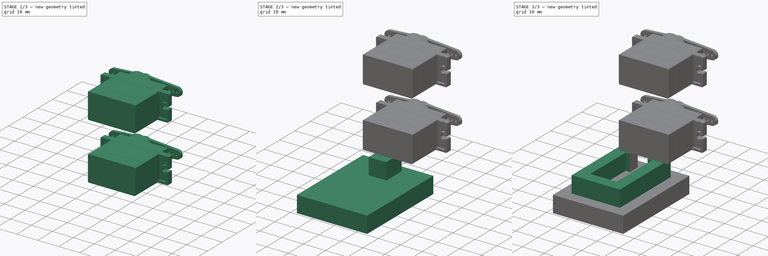
[diagram: build sequence overview — one tinted view per stage of 3, left to right]
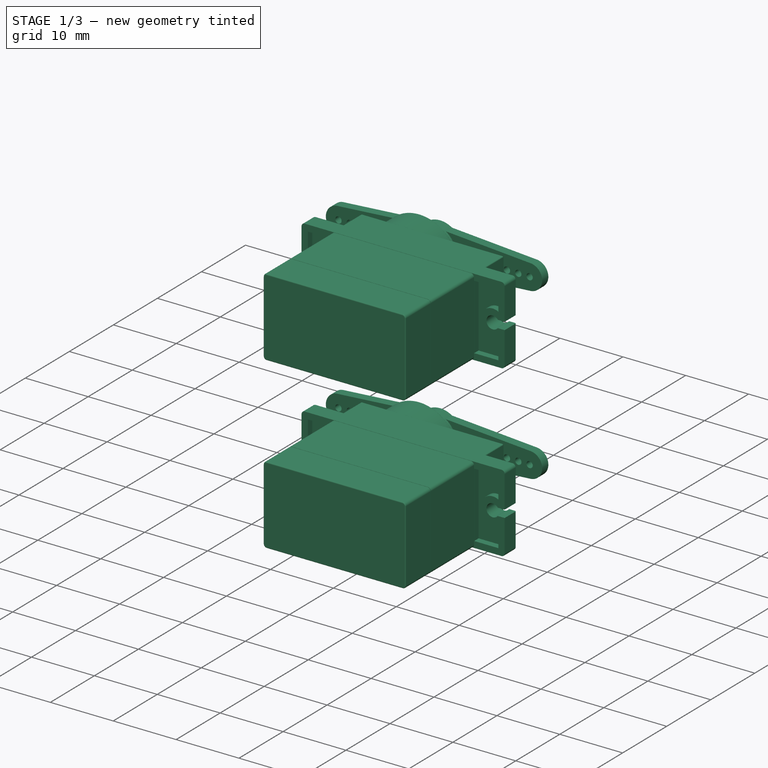
[diagram: stage 1 of 3 — iso view after this stage's code; geometry added in this stage tinted green]
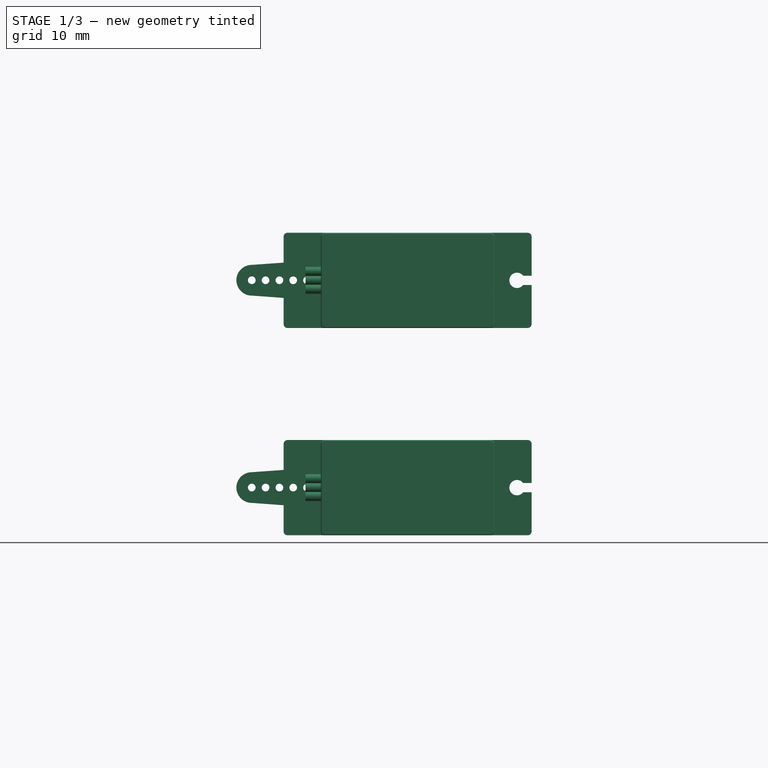
[diagram: stage 1 of 3 — front view after this stage's code; geometry added in this stage tinted green]
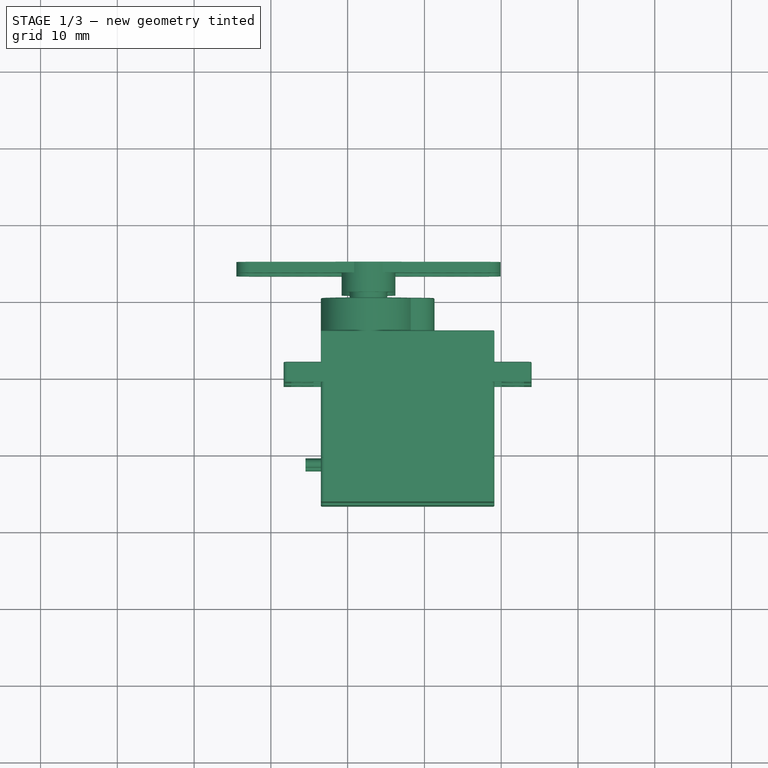
[diagram: stage 1 of 3 — top view after this stage's code; geometry added in this stage tinted green]
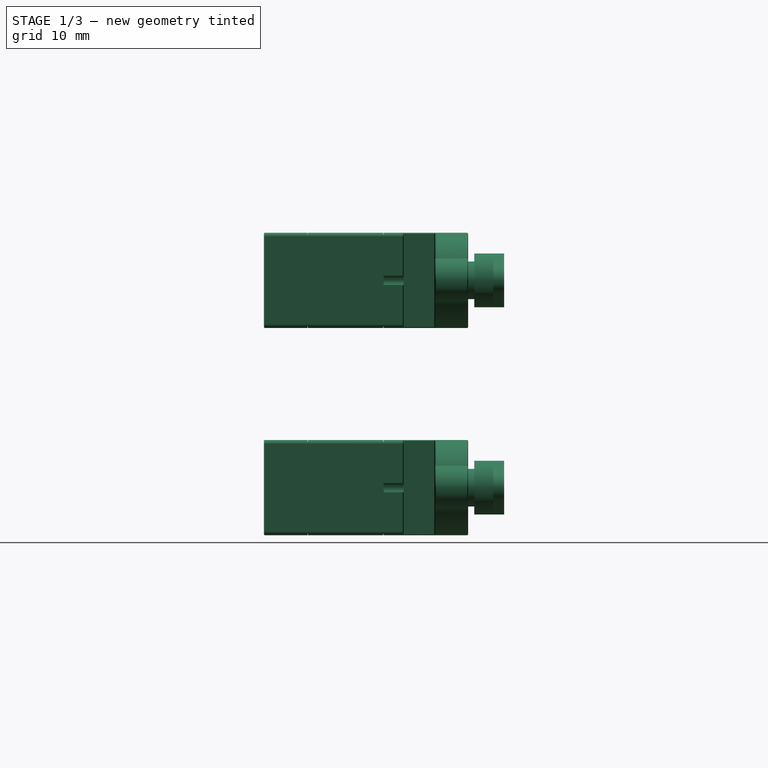
[diagram: stage 1 of 3 — right view after this stage's code; geometry added in this stage tinted green]
FCSTD DOCUMENT  (FreeCAD 0.18R16117 (Git))
Label: full
License: All rights reserved
LicenseURL: http://en.wikipedia.org/wiki/All_rights_reserved
objects: Part::Feature×5, PartDesign::Body×3, Part::Fuse×3, App::Part×3, Sketcher::SketchObject×2, PartDesign::Pad×2, Part::Box×1, Part::Cut×1, PartDesign::FeatureBase×1
note: 20 computed .brp shape members not serialized (recipe doc carries the construction recipe); baked Part::Feature solids carry a one-line shape summary decoded from their .brp

FEATURE [Part::Feature] Part__Feature  label="microservoSG90"
  Placement = pos=(7.80939,3.36548,26.0766) rot=(0,0,1;0rad)
  shape: bbox 32.38 x 29.8 x 13.42 mm, 178 faces (baked)
FEATURE [Part::Feature] Part__Feature001  label="microservoArm_A2"
  Placement = pos=(2.70939,34.6655,26.0766) rot=(0.000375,0,1;3.14159rad)
  shape: bbox 34.4 x 3.9 x 7 mm, 48 faces (baked)
FEATURE [App::Part] microservoAssembly
  Origin = -> Origin002
  Placement = pos=(0,8,0) rot=(0.707107,0,0.707107;1.5708rad)
FEATURE [Part::Fuse] Fusion001
  Base = -> Part__Feature
  Placement = pos=(0,0,0) rot=(1,0,0;1.5708rad)
  Tool = -> Part__Feature001
FEATURE [PartDesign::FeatureBase] BaseFeature
  BaseFeature = -> Fusion001
FEATURE [PartDesign::Body] Body002
  BaseFeature = -> Fusion001
  Group = -> [BaseFeature]
  Origin = -> Origin003
  Placement = pos=(0,0,0) rot=(1,0,0;1.5708rad)
  Tip = -> BaseFeature
FEATURE [App::Part] Part
  Group = -> [Fusion001,Part__Feature,Part__Feature001,Body002]
  Origin = -> Origin004
  Placement = pos=(27,8,0) rot=(0,0,1;-1.5708rad)
FEATURE [Part::Feature] Part__Feature002  label="Fusion002"
  Placement = pos=(1,5,40.8) rot=(0,0,1;-1.5708rad)
  shape: bbox 52 x 34.4 x 9 mm, 81 faces (baked)
FEATURE [Part::Feature] Part__Feature003  label="microservoSG091"
  Placement = pos=(7.80939,3.36548,26.0766) rot=(0,0,1;0rad)
  shape: bbox 32.38 x 29.8 x 13.42 mm, 178 faces (baked)
FEATURE [Part::Feature] Part__Feature004  label="microservoArm_A003"
  Placement = pos=(2.70939,34.6655,26.08) rot=(0.000375,0,1;3.14159rad)
  shape: bbox 34.4 x 3.9 x 7 mm, 48 faces (baked)
FEATURE [Part::Fuse] Fusion002  label="Fusion003"
  Base = -> Part__Feature003
  Placement = pos=(0,0,27) rot=(1,0,0;0rad)
  Tool = -> Part__Feature004
FEATURE [App::Part] Part001
  Group = -> [Fusion002,Part__Feature003,Part__Feature004]
  Origin = -> Origin005
  Placement = pos=(-6,-8,-5) rot=(0,0,1;0rad)
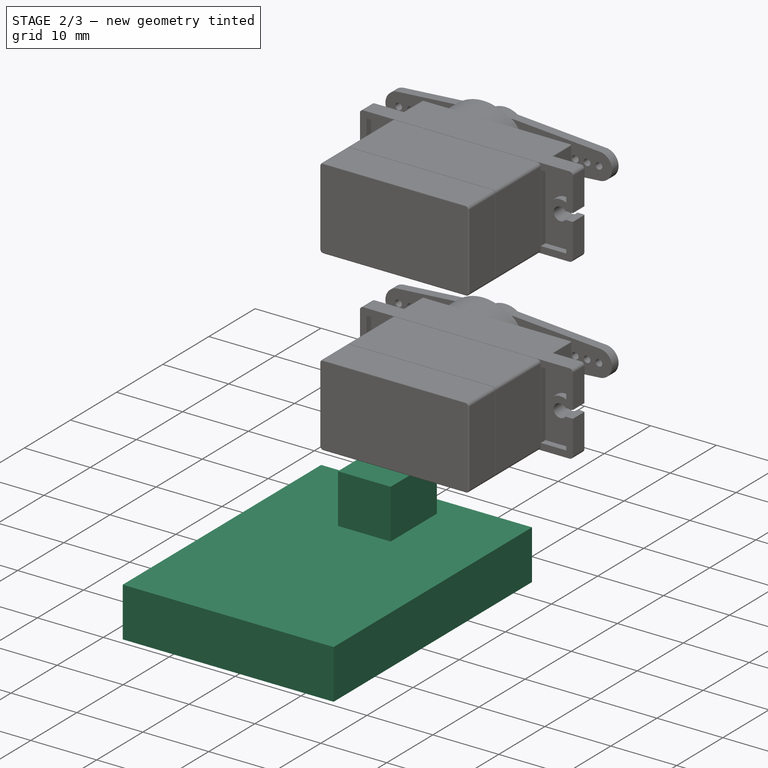
[diagram: stage 2 of 3 — iso view after this stage's code; geometry added in this stage tinted green]
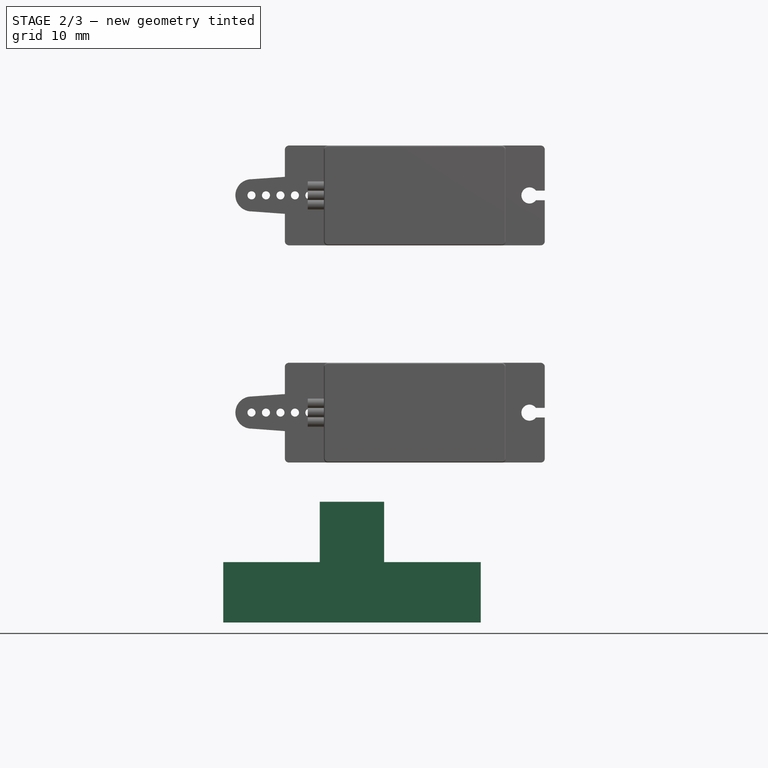
[diagram: stage 2 of 3 — front view after this stage's code; geometry added in this stage tinted green]
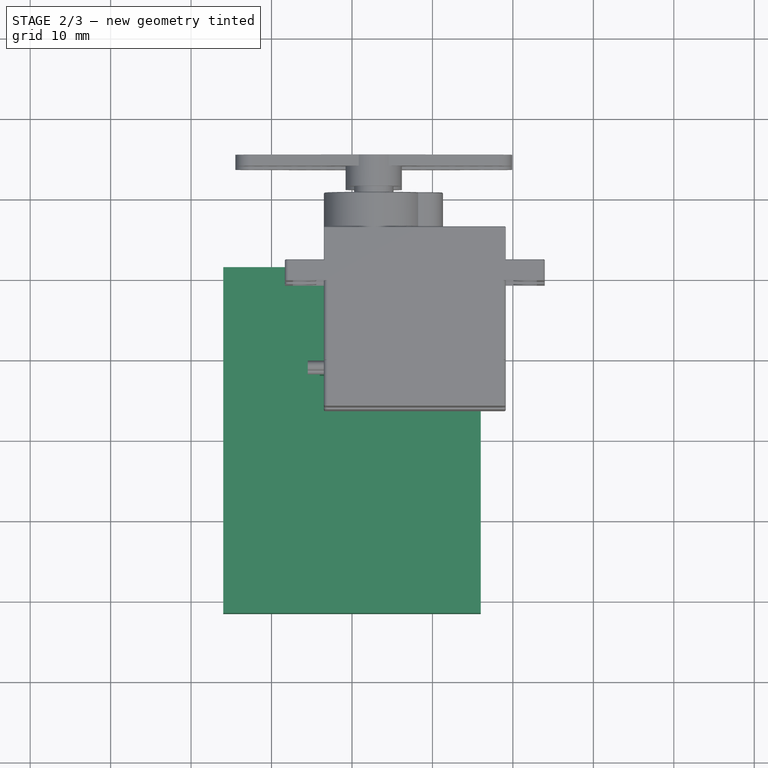
[diagram: stage 2 of 3 — top view after this stage's code; geometry added in this stage tinted green]
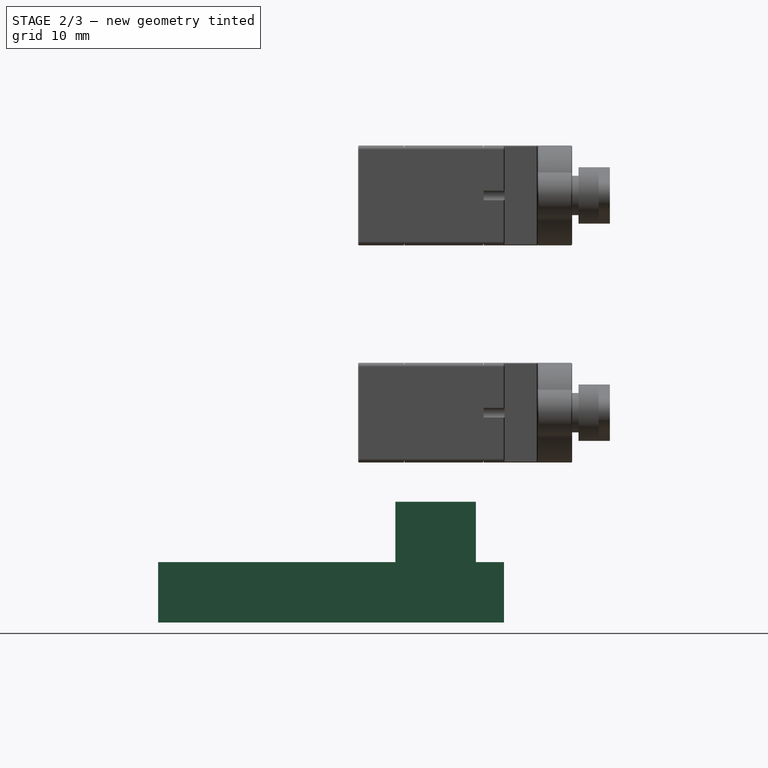
[diagram: stage 2 of 3 — right view after this stage's code; geometry added in this stage tinted green]
FEATURE [PartDesign::Body] Body
  Group = -> [Sketch,Pad]
  Origin = -> Origin
  Tip = -> Pad
FEATURE [Sketcher::SketchObject] Sketch001
  MapMode = 5
  Support = -> [XY_Plane001]
  sketch-geometry (4):
    g0: LineSegment StartX=-16 StartY=21.5 StartZ=0 EndX=16 EndY=21.5 EndZ=0
    g1: LineSegment StartX=16 StartY=21.5 StartZ=0 EndX=16 EndY=-21.5 EndZ=0
    g2: LineSegment StartX=16 StartY=-21.5 StartZ=0 EndX=-16 EndY=-21.5 EndZ=0
    g3: LineSegment StartX=-16 StartY=-21.5 StartZ=0 EndX=-16 EndY=21.5 EndZ=0
  constraints (8):
    c: Coincident(g0,g1)
    c: Coincident(g1,g2)
    c: Coincident(g2,g3)
    c: Coincident(g3,g0)
    c: Horizontal(g2)
    c: Vertical(g1)
    c: Symmetric(g0,g0,g-2)
    c: Symmetric(g0,g2,g-1)
FEATURE [PartDesign::Pad] Pad001
  Length = 7.5
  Length2 = 100
  Profile = -> Sketch001
  Type = 0
FEATURE [Part::Box] Box  label="Cube"
  AttacherType = Attacher::AttachEngine3D
  Height = 7.5
  Length = 8
  Placement = pos=(-4,8,7.5) rot=(0,0,1;0rad)
  Width = 10
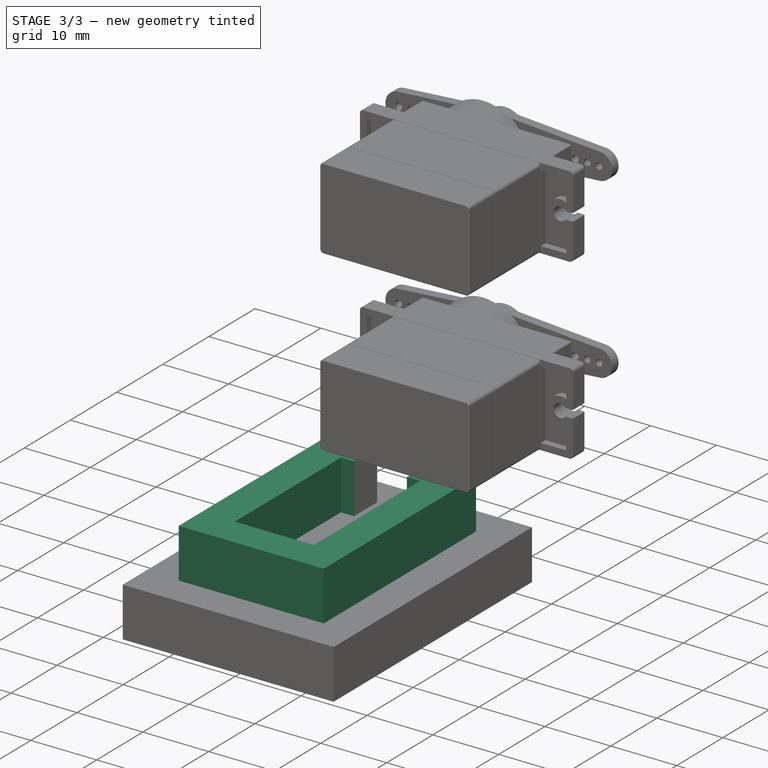
[diagram: stage 3 of 3 — iso view after this stage's code; geometry added in this stage tinted green]
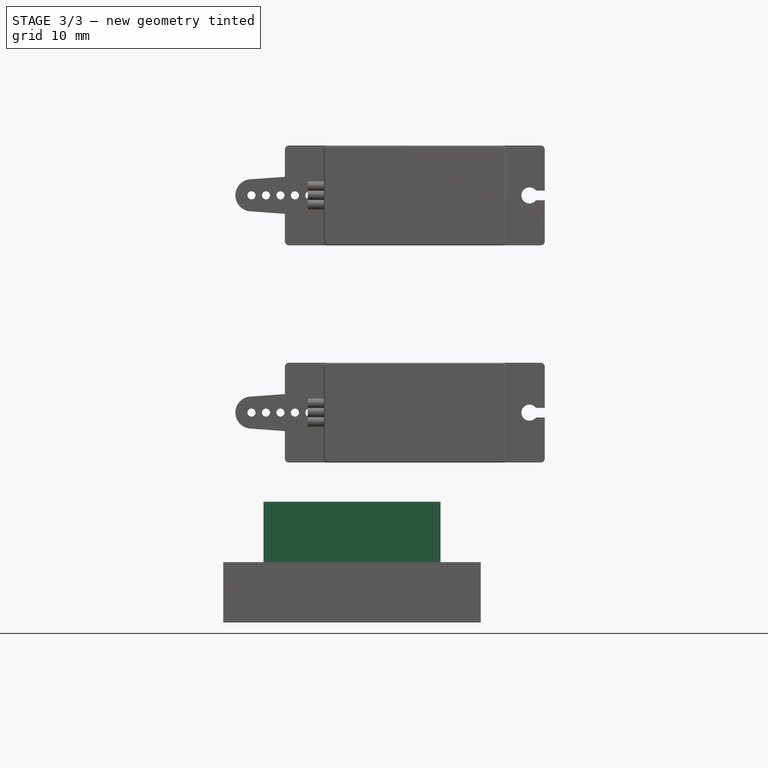
[diagram: stage 3 of 3 — front view after this stage's code; geometry added in this stage tinted green]
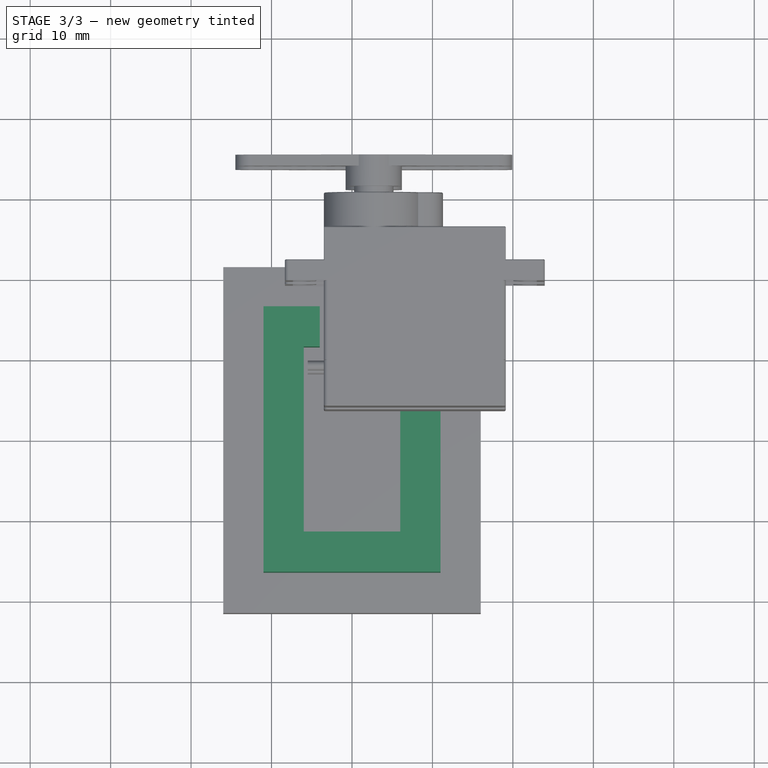
[diagram: stage 3 of 3 — top view after this stage's code; geometry added in this stage tinted green]
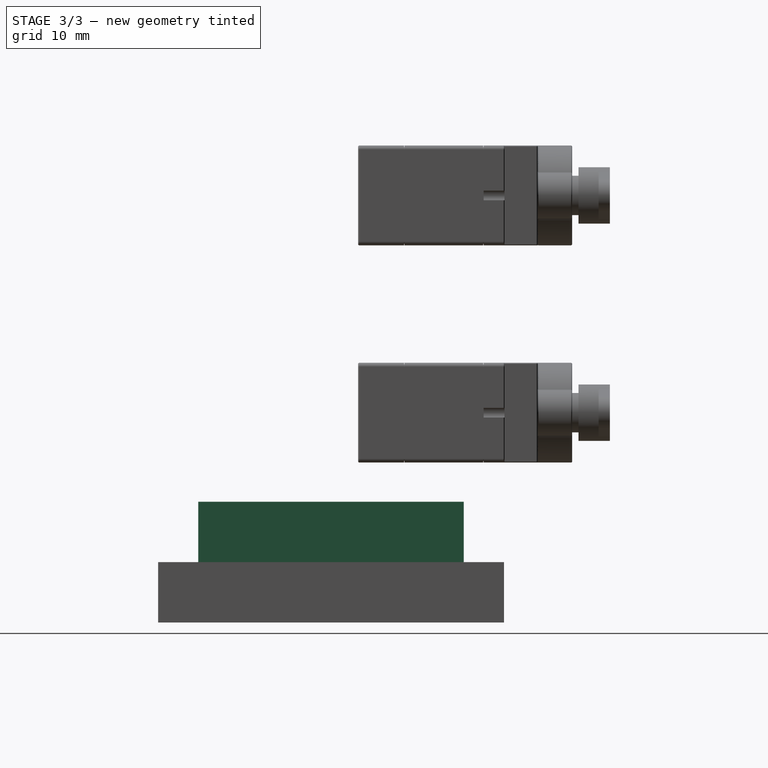
[diagram: stage 3 of 3 — right view after this stage's code; geometry added in this stage tinted green]
FEATURE [Sketcher::SketchObject] Sketch
  MapMode = 5
  Support = -> [XY_Plane]
  sketch-geometry (8):
    g0: LineSegment StartX=-6 StartY=11.5 StartZ=0 EndX=6 EndY=11.5 EndZ=0
    g1: LineSegment StartX=6 StartY=11.5 StartZ=0 EndX=6 EndY=-11.5 EndZ=0
    g2: LineSegment StartX=6 StartY=-11.5 StartZ=0 EndX=-6 EndY=-11.5 EndZ=0
    g3: LineSegment StartX=-6 StartY=-11.5 StartZ=0 EndX=-6 EndY=11.5 EndZ=0
    g4: LineSegment StartX=-11 StartY=16.5 StartZ=0 EndX=11 EndY=16.5 EndZ=0
    g5: LineSegment StartX=11 StartY=16.5 StartZ=0 EndX=11 EndY=-16.5 EndZ=0
    g6: LineSegment StartX=11 StartY=-16.5 StartZ=0 EndX=-11 EndY=-16.5 EndZ=0
    g7: LineSegment StartX=-11 StartY=-16.5 StartZ=0 EndX=-11 EndY=16.5 EndZ=0
  constraints (20):
    c: Coincident(g0,g1)
    c: Coincident(g1,g2)
    c: Coincident(g2,g3)
    c: Coincident(g3,g0)
    c: Horizontal(g2)
    c: Vertical(g1)
    c: Distance(g0,g0) = 12
    c: Distance(g0,g2) = 23
    c: Coincident(g4,g5)
    c: Coincident(g5,g6)
    c: Coincident(g6,g7)
    c: Coincident(g7,g4)
    c: Horizontal(g6)
    c: Vertical(g5)
    c: Distance(g0,g7) = 5
    c: Distance(g0,g4) = 5
    c: Symmetric(g0,g0,g-2)
    c: Symmetric(g4,g4,g-2)
    c: Symmetric(g2,g0,g-1)
    c: Symmetric(g4,g6,g-1)
FEATURE [PartDesign::Pad] Pad
  Length = 15
  Length2 = 100
  Profile = -> Sketch
  Type = 0
FEATURE [PartDesign::Body] Body001
  Group = -> [Sketch001,Pad001]
  Origin = -> Origin001
  Tip = -> Pad001
FEATURE [Part::Fuse] Fusion
  Base = -> Body
  Tool = -> Body001
FEATURE [Part::Cut] Cut
  Base = -> Fusion
  Tool = -> Box
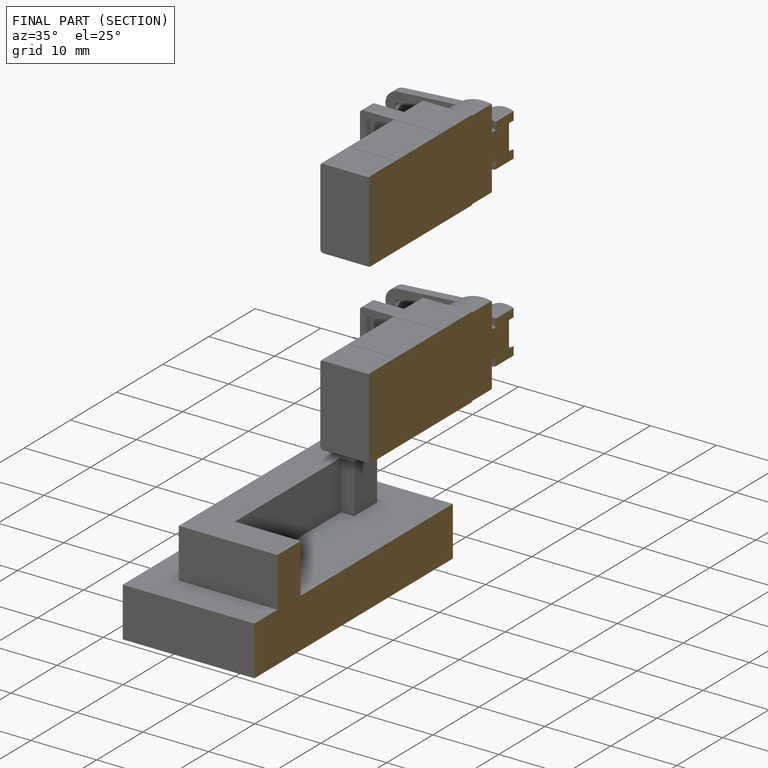
[diagram: finished part — half-section view (interior)]
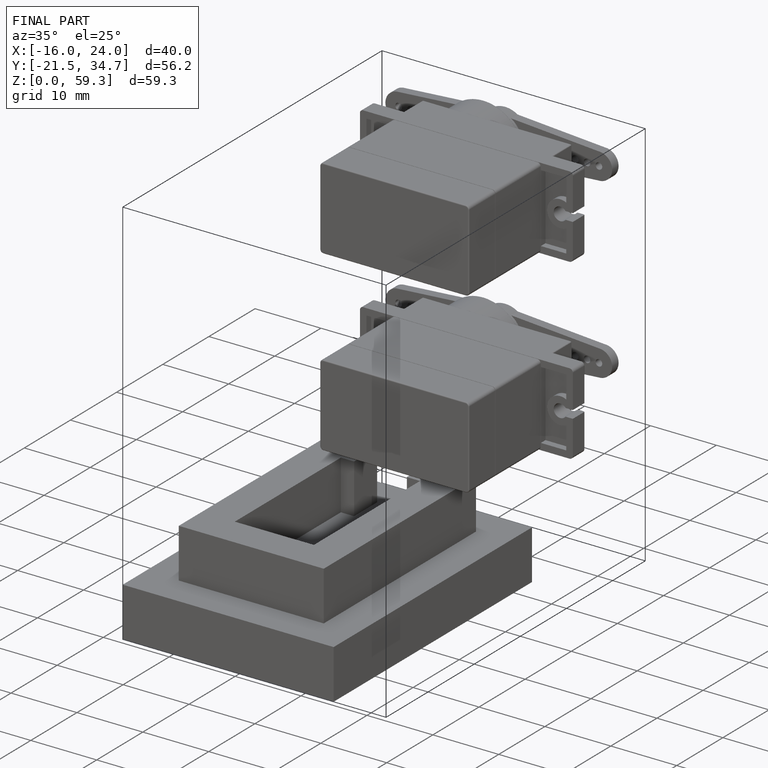
[diagram: finished part — iso view with bounding-box wireframe]
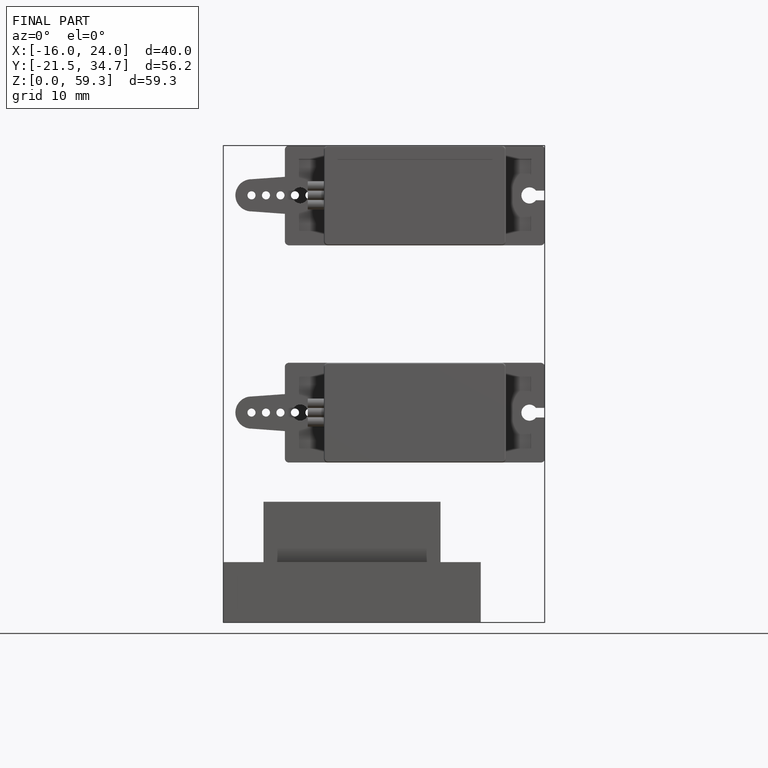
[diagram: finished part — front view with bounding-box wireframe]
